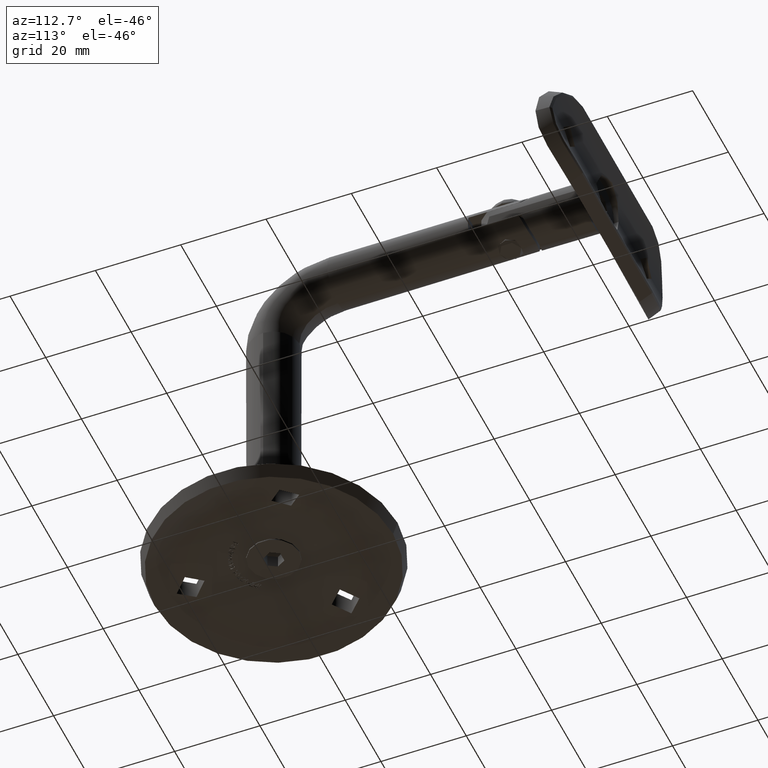
[diagram: clean part render]
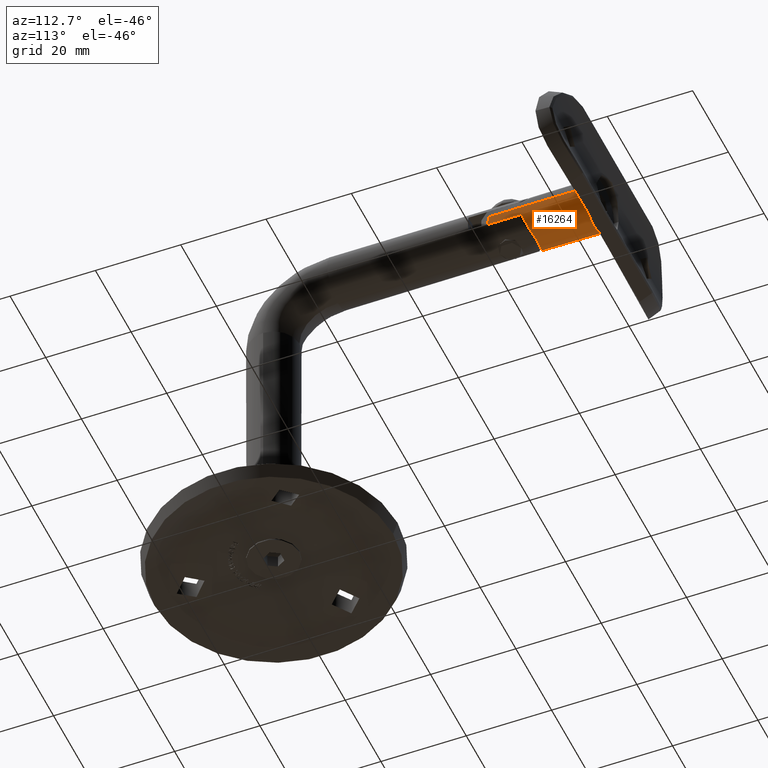
[diagram: same view with one face highlighted and labeled with its STEP entity id]
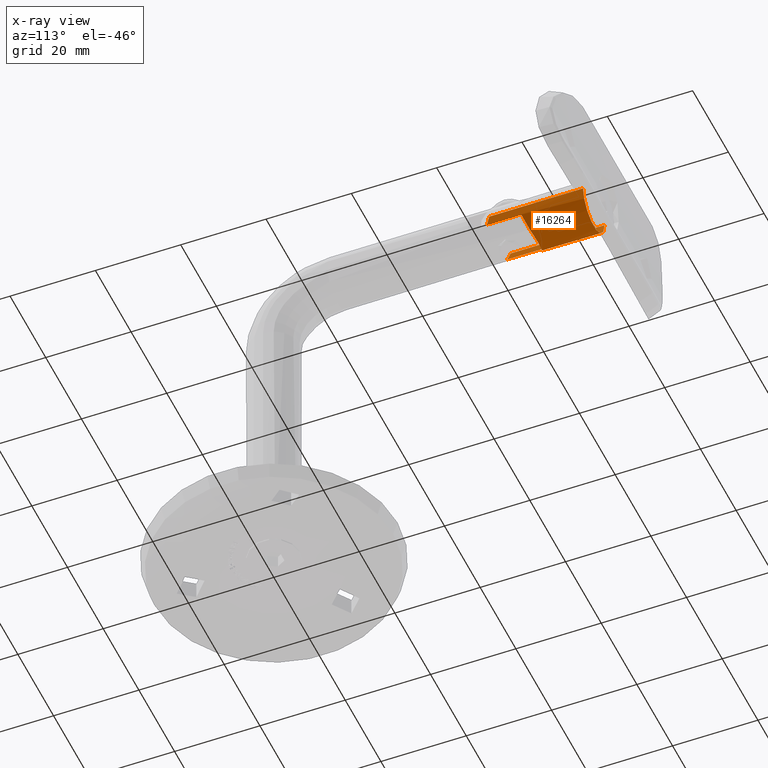
[diagram: x-ray of the same camera — body ghosted, the highlighted face saturated]
A machine part, auxiliary view. The second image highlights one B-rep face of the part: STEP entity #16264.
The next image is the same camera in x-ray: the body ghosted, the highlighted face saturated — about 0% of this face is hidden behind the body in this view.
In plain terms, the highlighted cylindrical surface (edge-blend (fillet) strip) has radius 6 mm, axis along (0, -1, -0).
Its self-contained STEP definition (entity closure, byte-faithful):
#143 = VERTEX_POINT ( 'NONE', #18452 ) ;
#343 = EDGE_CURVE ( 'NONE', #6448, #5203, #16445, .T. ) ;
#675 = LINE ( 'NONE', #3517, #17887 ) ;
#820 = CARTESIAN_POINT ( 'NONE',  ( -5.876033527386977262, 0.7995769372394916363, 1.254618964840511941 ) ) ;
#888 = CARTESIAN_POINT ( 'NONE',  ( -5.746157685778085167, 0.7269620689422608972, -1.733780285836715729 ) ) ;
#954 = CARTESIAN_POINT ( 'NONE',  ( -1.949999999999993516, -0.7952674064236677776, -5.674284095813332485 ) ) ;
#1020 = CARTESIAN_POINT ( 'NONE',  ( -4.056276807384038285, -0.1080968941206715689, 4.431631759535948234 ) ) ;
#1304 = CARTESIAN_POINT ( 'NONE',  ( 7.347984605287114502E-16, -8.130000000000002558, 6.000000000000000888 ) ) ;
#1494 = CARTESIAN_POINT ( 'NONE',  ( -1.356333441462933775, -8.458248198658443684, -5.854028052474961719 ) ) ;
#1533 = VERTEX_POINT ( 'NONE', #9256 ) ;
#1972 = ORIENTED_EDGE ( 'NONE', *, *, #4854, .T. ) ;
#2312 = CARTESIAN_POINT ( 'NONE',  ( -3.340289119787021477, -0.3911208846468754996, 4.993478699911529262 ) ) ;
#2377 = CARTESIAN_POINT ( 'NONE',  ( -2.545912516661468228, -0.6637377426583201956, -5.469495370422012392 ) ) ;
#2501 = CARTESIAN_POINT ( 'NONE',  ( -5.789596934387225780, 0.7511587282367250262, -1.582921767755907982 ) ) ;
#2652 = CARTESIAN_POINT ( 'NONE',  ( -0.6986285152619414740, -8.220331423051645103, 5.961683284023605367 ) ) ;
#2880 = DIRECTION ( 'NONE',  ( -1.016891010636458122E-31, 1.000000000000000000, 5.819059760541419184E-32 ) ) ;
#2927 = DIRECTION ( 'NONE',  ( 4.683861624749745333E-31, 0.000000000000000000, 1.000000000000000000 ) ) ;
#3033 = ORIENTED_EDGE ( 'NONE', *, *, #17636, .T. ) ;
#3200 = CARTESIAN_POINT ( 'NONE',  ( -1.615586979678786132E-30, 13.87000000000000099, -6.000000000000000888 ) ) ;
#3517 = CARTESIAN_POINT ( 'NONE',  ( 7.347880794884186789E-16, 13.87000000000000099, 6.000000000000016875 ) ) ;
#3590 = ORIENTED_EDGE ( 'NONE', *, *, #12657, .F. ) ;
#3620 = EDGE_CURVE ( 'NONE', #15574, #16686, #18441, .T. ) ;
#3659 = ORIENTED_EDGE ( 'NONE', *, *, #15114, .T. ) ;
#3683 = CARTESIAN_POINT ( 'NONE',  ( -3.819774676878478381, -0.2071924841733103484, -4.637096800382057182 ) ) ;
#3877 = CARTESIAN_POINT ( 'NONE',  ( -5.034234525614663447, 0.3484242617697924094, -3.278745595078504049 ) ) ;
#3939 = CARTESIAN_POINT ( 'NONE',  ( -3.083596645051436713, -0.4892637133453920928, -5.183127724026295624 ) ) ;
#3966 = DIRECTION ( 'NONE',  ( -4.683861624749745333E-31, 0.000000000000000000, -1.000000000000000000 ) ) ;
#4019 = B_SPLINE_CURVE_WITH_KNOTS ( 'NONE', 3,
 ( #8770, #10249, #16320, #6039, #13288, #1494, #11764, #16262 ),
 .UNSPECIFIED., .F., .F.,
 ( 4, 2, 2, 4 ),
 ( 0.002116978154894626901, 0.002647953087225922431, 0.003178928019557217960, 0.004240877884219808151 ),
 .UNSPECIFIED. ) ;
#4462 = CARTESIAN_POINT ( 'NONE',  ( -1.950000000000007283, -15.13000000000007361, 5.674284095813331597 ) ) ;
#4619 = B_SPLINE_CURVE_WITH_KNOTS ( 'NONE', 3,
 ( #954, #2377, #3939, #3683, #12490, #5380, #5319, #3877, #15653, #15593, #14171, #888, #2501, #17056, #6848, #8250, #9574, #9714, #17118, #820, #12679, #15461, #8308, #18583, #5440, #9780, #8126, #1020, #11276, #2312, #15717, #6912, #17177, #18324 ),
 .UNSPECIFIED., .F., .F.,
 ( 4, 2, 2, 2, 2, 2, 2, 2, 2, 2, 2, 2, 2, 2, 2, 2, 4 ),
 ( 1.168174384186539911E-17, 0.001900763859049874180, 0.002851145788574805957, 0.003801527718099737517, 0.004751909647624669511, 0.005702291577149603240, 0.006177482541912069670, 0.006652673506674535234, 0.007603055436199468095, 0.008553437365724400956, 0.009503819295249333818, 0.01045420122477426841, 0.01140458315429920128, 0.01235496508382413414, 0.01330534701334906526, 0.01425572894287399986, 0.01520611087239893272 ),
 .UNSPECIFIED. ) ;
#4771 = AXIS2_PLACEMENT_3D ( 'NONE', #12774, #11299, #3966 ) ;
#4854 = EDGE_CURVE ( 'NONE', #15574, #17460, #18565, .T. ) ;
#5203 = VERTEX_POINT ( 'NONE', #15282 ) ;
#5319 = CARTESIAN_POINT ( 'NONE',  ( -4.674439362564458023, 0.1718272196196832802, -3.774030548610517233 ) ) ;
#5380 = CARTESIAN_POINT ( 'NONE',  ( -4.477902810782055987, 0.07902163094600572757, -4.005028947241380699 ) ) ;
#5440 = CARTESIAN_POINT ( 'NONE',  ( -5.042797185098774726, 0.3527548033774091651, 3.265583776148397011 ) ) ;
#5598 = CARTESIAN_POINT ( 'NONE',  ( -1.660485138941728778, -8.622506926752270928, 5.773777524328851385 ) ) ;
#6039 = CARTESIAN_POINT ( 'NONE',  ( -0.6971621676537457235, -8.219891204354215830, -5.961874539514815829 ) ) ;
#6419 = EDGE_CURVE ( 'NONE', #11134, #143, #12659, .T. ) ;
#6448 = VERTEX_POINT ( 'NONE', #15433 ) ;
#6538 = DIRECTION ( 'NONE',  ( 1.047705889746653458E-31, -1.000000000000000000, -7.051654924949245751E-32 ) ) ;
#6687 = CYLINDRICAL_SURFACE ( 'NONE', #4771, 6.000000000000016875 ) ;
#6739 = VECTOR ( 'NONE', #2880, 1000.000000000000000 ) ;
#6797 = VECTOR ( 'NONE', #11448, 1000.000000000000000 ) ;
#6848 = CARTESIAN_POINT ( 'NONE',  ( -5.897096171470198378, 0.8115181713528840657, -1.117862588934681378 ) ) ;
#6912 = CARTESIAN_POINT ( 'NONE',  ( -2.532844715718212125, -0.6523752993586633409, 5.447966680426153729 ) ) ;
#6940 = CARTESIAN_POINT ( 'NONE',  ( -2.810316974849854907E-30, 13.87000000000000099, -6.000000000000016875 ) ) ;
#7126 = CARTESIAN_POINT ( 'NONE',  ( -0.3550006034376564368, -8.149476236711265642, 5.991971624841231581 ) ) ;
#7567 = ORIENTED_EDGE ( 'NONE', *, *, #11723, .T. ) ;
#7825 = ORIENTED_EDGE ( 'NONE', *, *, #6419, .F. ) ;
#8126 = CARTESIAN_POINT ( 'NONE',  ( -4.484137757500029409, 0.08188697668327381274, 3.998155845138092968 ) ) ;
#8250 = CARTESIAN_POINT ( 'NONE',  ( -5.973588607804166450, 0.8548459561304093679, -0.6462810827690159687 ) ) ;
#8308 = CARTESIAN_POINT ( 'NONE',  ( -5.485808648834580303, 0.5841908023380935067, 2.449992821744333416 ) ) ;
#8723 = FACE_OUTER_BOUND ( 'NONE', #16417, .T. ) ;
#8770 = CARTESIAN_POINT ( 'NONE',  ( -2.166156247667680239E-12, -8.130000000001906812, -6.000000000000060396 ) ) ;
#9256 = CARTESIAN_POINT ( 'NONE',  ( -2.166156247667680239E-12, -8.130000000001906812, -6.000000000000060396 ) ) ;
#9379 = LINE ( 'NONE', #6940, #16106 ) ;
#9574 = CARTESIAN_POINT ( 'NONE',  ( -5.999258930747096485, 0.8695765325946295254, -0.3306323314668245250 ) ) ;
#9610 = DIRECTION ( 'NONE',  ( 1.047705889746653458E-31, -1.000000000000000000, -7.051654924949245751E-32 ) ) ;
#9714 = CARTESIAN_POINT ( 'NONE',  ( -6.000709634817014582, 0.8704055048864097754, 0.3031655247125409347 ) ) ;
#9780 = CARTESIAN_POINT ( 'NONE',  ( -4.683988768002315339, 0.1763928532914915415, 3.762192189443798629 ) ) ;
#10249 = CARTESIAN_POINT ( 'NONE',  ( -0.1773983956603128742, -8.130000000000167759, -5.999999999999930722 ) ) ;
#10399 = DIRECTION ( 'NONE',  ( -1.047705889746653458E-31, 1.000000000000000000, 7.051654924949245751E-32 ) ) ;
#10917 = CARTESIAN_POINT ( 'NONE',  ( 7.347984605287114502E-16, -8.130000000000002558, 6.000000000000000888 ) ) ;
#11134 = VERTEX_POINT ( 'NONE', #3200 ) ;
#11276 = CARTESIAN_POINT ( 'NONE',  ( -3.827753979006812468, -0.2039161669257853471, 4.630406073600369155 ) ) ;
#11299 = DIRECTION ( 'NONE',  ( 1.047705889746653458E-31, -1.000000000000000000, -7.051654924949245751E-32 ) ) ;
#11448 = DIRECTION ( 'NONE',  ( 1.016891010636458122E-31, -1.000000000000000000, -5.819059760541419184E-32 ) ) ;
#11723 = EDGE_CURVE ( 'NONE', #6448, #16686, #4619, .T. ) ;
#11764 = CARTESIAN_POINT ( 'NONE',  ( -1.660413404376833713, -8.622462807713791477, -5.773802176320043777 ) ) ;
#12106 = CARTESIAN_POINT ( 'NONE',  ( -1.950000000000021050, -8.800567772497533525, 5.674284095813336037 ) ) ;
#12490 = CARTESIAN_POINT ( 'NONE',  ( -4.051492883115036747, -0.1101217429370784789, -4.435907558676068341 ) ) ;
#12657 = EDGE_CURVE ( 'NONE', #143, #17460, #675, .T. ) ;
#12659 = CIRCLE ( 'NONE', #16060, 6.000000000000016875 ) ;
#12679 = CARTESIAN_POINT ( 'NONE',  ( -5.801855317072395657, 0.7577309418587740986, 1.561054642981890783 ) ) ;
#12774 = CARTESIAN_POINT ( 'NONE',  ( 0.000000000000000000, 13.87000000000000099, 0.000000000000000000 ) ) ;
#13288 = CARTESIAN_POINT ( 'NONE',  ( -0.8678303461400231900, -8.272057224376021978, -5.939208002858387125 ) ) ;
#14171 = CARTESIAN_POINT ( 'NONE',  ( -5.599413619556963262, 0.6460290712711188599, -2.178039493363321366 ) ) ;
#14453 = CARTESIAN_POINT ( 'NONE',  ( -0.8656705848285730642, -8.271314079776338701, 5.939540473097909334 ) ) ;
#14590 = CARTESIAN_POINT ( 'NONE',  ( -1.950000000000021050, -8.800567772497533525, 5.674284095813336037 ) ) ;
#15114 = EDGE_CURVE ( 'NONE', #1533, #5203, #4019, .T. ) ;
#15125 = ORIENTED_EDGE ( 'NONE', *, *, #343, .F. ) ;
#15282 = CARTESIAN_POINT ( 'NONE',  ( -1.950000000000007283, -8.800567772497540631, -5.674284095813330708 ) ) ;
#15433 = CARTESIAN_POINT ( 'NONE',  ( -1.949999999999993516, -0.7952674064236677776, -5.674284095813332485 ) ) ;
#15461 = CARTESIAN_POINT ( 'NONE',  ( -5.607422889640975683, 0.6503998202150913510, 2.157597102182661875 ) ) ;
#15504 = ORIENTED_EDGE ( 'NONE', *, *, #3620, .F. ) ;
#15574 = VERTEX_POINT ( 'NONE', #12106 ) ;
#15593 = CARTESIAN_POINT ( 'NONE',  ( -5.479791359392702788, 0.5809632874993051477, -2.463170049349546531 ) ) ;
#15653 = CARTESIAN_POINT ( 'NONE',  ( -5.198026290061026344, 0.4325610670618666442, -3.012613935160296741 ) ) ;
#15717 = CARTESIAN_POINT ( 'NONE',  ( -3.079551232902992819, -0.4830836503388665770, 5.158682730009751083 ) ) ;
#15884 = CARTESIAN_POINT ( 'NONE',  ( -1.950000000000007283, -15.13000000000007361, -5.674284095813331597 ) ) ;
#16060 = AXIS2_PLACEMENT_3D ( 'NONE', #17720, #10399, #2927 ) ;
#16064 = CARTESIAN_POINT ( 'NONE',  ( -0.1759536988987016881, -8.130000000000000782, 6.000000000000001776 ) ) ;
#16106 = VECTOR ( 'NONE', #9610, 1000.000000000000000 ) ;
#16262 = CARTESIAN_POINT ( 'NONE',  ( -1.950000000000007283, -8.800567772497540631, -5.674284095813330708 ) ) ;
#16264 = ADVANCED_FACE ( 'NONE', ( #8723 ), #6687, .T. ) ;
#16320 = CARTESIAN_POINT ( 'NONE',  ( -0.3521761159872664471, -8.149033421583675718, -5.992157799678741625 ) ) ;
#16417 = EDGE_LOOP ( 'NONE', ( #3590, #7825, #3033, #3659, #15125, #7567, #15504, #1972 ) ) ;
#16445 = LINE ( 'NONE', #15884, #6797 ) ;
#16686 = VERTEX_POINT ( 'NONE', #17444 ) ;
#17056 = CARTESIAN_POINT ( 'NONE',  ( -5.865030150732811975, 0.7934160689854719006, -1.275341254918259004 ) ) ;
#17118 = CARTESIAN_POINT ( 'NONE',  ( -5.975964728284162142, 0.8562032933048963068, 0.6242470089771576802 ) ) ;
#17177 = CARTESIAN_POINT ( 'NONE',  ( -2.247929428012621411, -0.7295084965221938500, 5.571898953509082375 ) ) ;
#17444 = CARTESIAN_POINT ( 'NONE',  ( -1.949999999999993516, -0.7952674064236677776, 5.674284095813332485 ) ) ;
#17452 = CARTESIAN_POINT ( 'NONE',  ( -1.356028637520408919, -8.457973071322363978, 5.854168831375369031 ) ) ;
#17460 = VERTEX_POINT ( 'NONE', #10917 ) ;
#17636 = EDGE_CURVE ( 'NONE', #11134, #1533, #9379, .T. ) ;
#17720 = CARTESIAN_POINT ( 'NONE',  ( 0.000000000000000000, 13.87000000000000099, 0.000000000000000000 ) ) ;
#17887 = VECTOR ( 'NONE', #6538, 1000.000000000000000 ) ;
#18324 = CARTESIAN_POINT ( 'NONE',  ( -1.949999999999993516, -0.7952674064236677776, 5.674284095813332485 ) ) ;
#18441 = LINE ( 'NONE', #4462, #6739 ) ;
#18452 = CARTESIAN_POINT ( 'NONE',  ( 7.347880794884180873E-16, 13.87000000000000099, 6.000000000000000888 ) ) ;
#18565 = B_SPLINE_CURVE_WITH_KNOTS ( 'NONE', 3,
 ( #14590, #5598, #17452, #14453, #2652, #7126, #16064, #1304 ),
 .UNSPECIFIED., .F., .F.,
 ( 4, 2, 2, 4 ),
 ( 0.02086166219361911336, 0.02192119013487877147, 0.02245095410550860399, 0.02298071807613843304 ),
 .UNSPECIFIED. ) ;
#18583 = CARTESIAN_POINT ( 'NONE',  ( -5.203364608944183622, 0.4353167097986864187, 3.003590868379748091 ) ) ;